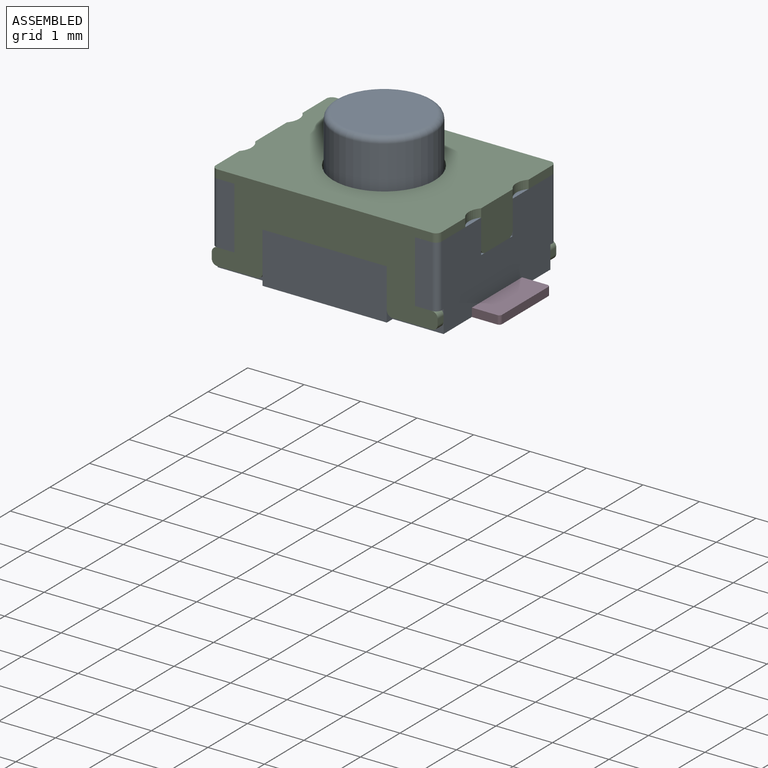
[diagram: assembled view]
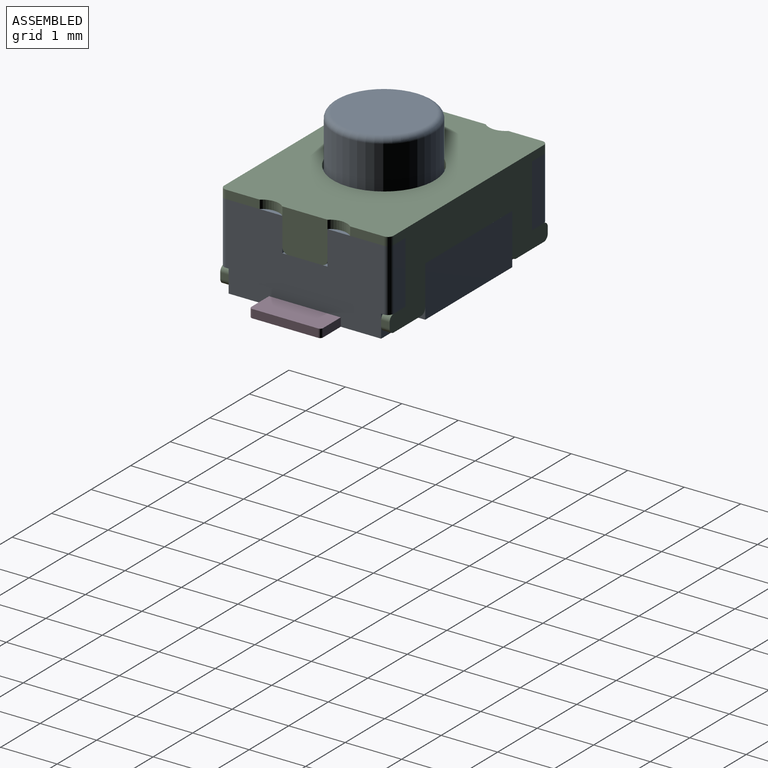
[diagram: assembled view, second angle]
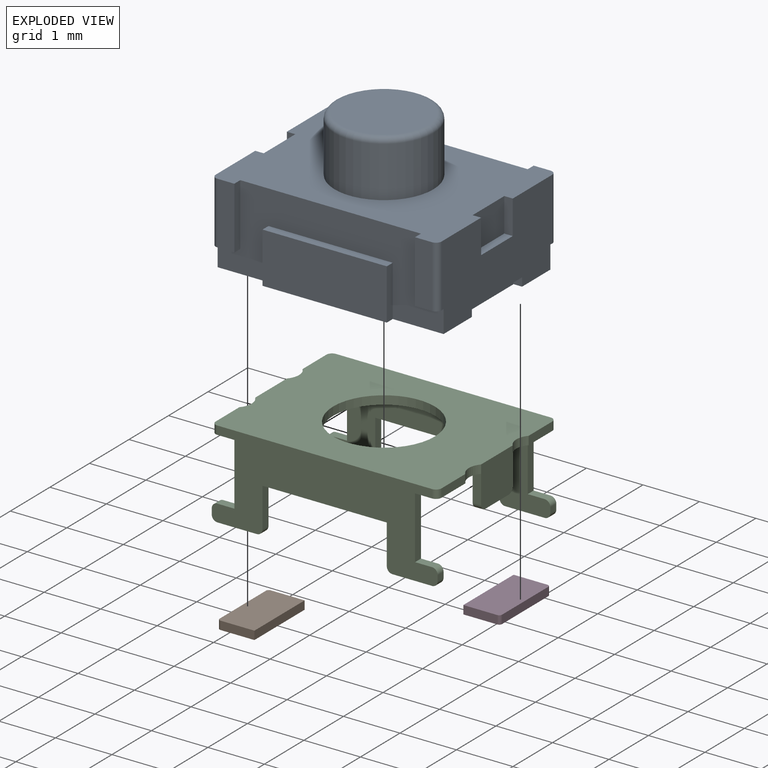
[diagram: exploded view]
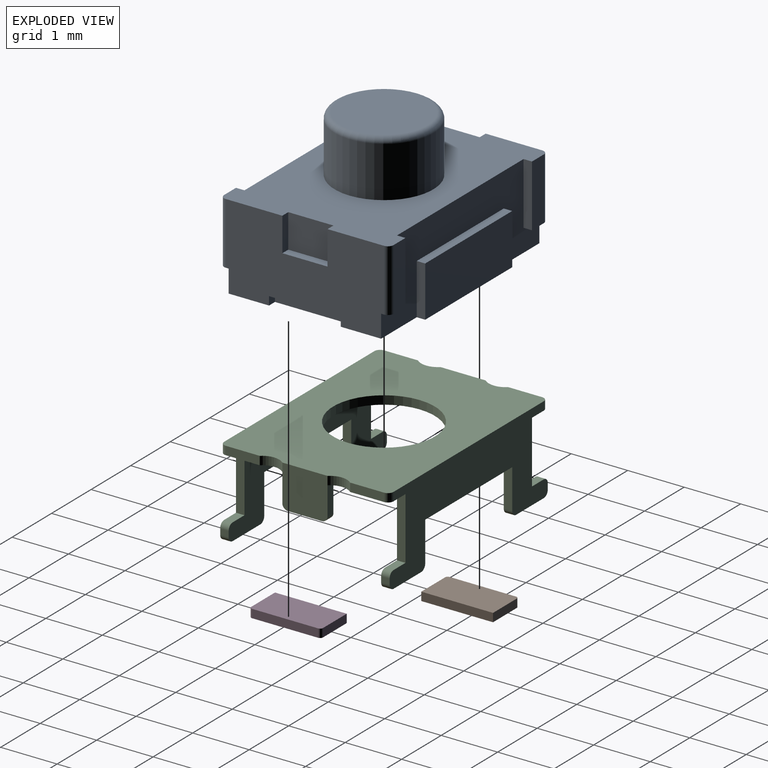
[diagram: exploded view, second angle]
ASSEMBLY  parts=4 mates=3
PART A: 49 faces, bbox 4x3x2.5 mm
  f0: plane 2.8x1.5mm, normal (1,0,0), area 3.5mm2, adj f2,f7,f10,f11,f12,f22,f23,f24
  f1: plane 2.8x1.5mm, normal (-1,0,0), area 3.5mm2, adj f2,f7,f14,f15,f16,f18,f19,f20
  f2: plane 4x3mm, normal (0,0,1), area 8.4mm2, adj f0,f1,f3,f4,f5,f9,f18,f19
  f3: plane 1.1x0.3mm, normal (0,-1,0), area 0.3mm2, adj f2,f38,f39,f48
  f4: plane 1.1x0.3mm, normal (0,-1,0), area 0.3mm2, adj f2,f36,f37,f45
  f5: plane 1.1x0.3mm, normal (0,1,0), area 0.3mm2, adj f2,f28,f29,f47
  f6: plane 2.2x0.9mm, normal (0,1,0), area 2mm2, adj f7,f26,f27,f32
  f7: plane 4x3mm, normal (0,0,-1), area 11.1mm2, adj f0,f1,f6,f8,f10,f12,f13,f15
  f8: plane 2.2x0.9mm, normal (0,-1,0), area 2mm2, adj f7,f34,f35,f40
  f9: plane 1.1x0.3mm, normal (0,1,0), area 0.3mm2, adj f2,f30,f31,f46
  f10: plane 0.15x0.15mm, normal (0,-1,0), area 0mm2, adj f0,f7,f11,f13
  f11: plane 1.27x0.15mm, normal (0,0,-1), area 0.2mm2, adj f0,f10,f12,f13
  f12: plane 0.15x0.15mm, normal (0,1,0), area 0mm2, adj f0,f7,f11,f13
  f13: plane 1.27x0.15mm, normal (1,0,0), area 0.2mm2, adj f7,f10,f11,f12
  f14: plane 1.27x0.15mm, normal (0,0,-1), area 0.2mm2, adj f1,f15,f16,f17
  f15: plane 0.15x0.15mm, normal (0,-1,0), area 0mm2, adj f1,f7,f14,f17
  f16: plane 0.15x0.15mm, normal (0,1,0), area 0mm2, adj f1,f7,f14,f17
  f17: plane 1.27x0.15mm, normal (-1,0,0), area 0.2mm2, adj f7,f14,f15,f16
  f18: plane 0.6x0.15mm, normal (0,1,0), area 0.1mm2, adj f1,f2,f20,f21
  f19: plane 0.6x0.15mm, normal (0,-1,0), area 0.1mm2, adj f1,f2,f20,f21
  f20: plane 0.8x0.15mm, normal (0,0,1), area 0.1mm2, adj f1,f18,f19,f21
  f21: plane 0.8x0.6mm, normal (-1,0,0), area 0.5mm2, adj f2,f18,f19,f20
  f22: plane 0.6x0.15mm, normal (0,-1,0), area 0.1mm2, adj f0,f2,f24,f25
  f23: plane 0.6x0.15mm, normal (0,1,0), area 0.1mm2, adj f0,f2,f24,f25
  f24: plane 0.8x0.15mm, normal (0,0,1), area 0.1mm2, adj f0,f22,f23,f25
  f25: plane 0.8x0.6mm, normal (1,0,0), area 0.5mm2, adj f2,f22,f23,f24
  f26: plane 2.2x0.15mm, normal (0,0,1), area 0.3mm2, adj f6,f27,f32,f33
  f27: plane 0.9x0.15mm, normal (-1,0,0), area 0.1mm2, adj f6,f7,f26,f33
  f28: plane 0.4x0.15mm, normal (0,0,-1), area 0.1mm2, adj f1,f5,f29,f33,f47
  f29: plane 1.1x0.15mm, normal (1,0,0), area 0.2mm2, adj f2,f5,f28,f33
  f30: plane 1.1x0.15mm, normal (-1,0,0), area 0.2mm2, adj f2,f9,f31,f33
  f31: plane 0.4x0.15mm, normal (0,0,-1), area 0.1mm2, adj f0,f9,f30,f33,f46
  f32: plane 0.9x0.15mm, normal (1,0,0), area 0.1mm2, adj f6,f7,f26,f33
  f33: plane 4x1.5mm, normal (0,1,0), area 3.1mm2, adj f0,f1,f2,f7,f26,f27,f28,f29
  f34: plane 2.2x0.15mm, normal (0,0,1), area 0.3mm2, adj f8,f35,f40,f41
  f35: plane 0.9x0.15mm, normal (1,0,0), area 0.1mm2, adj f7,f8,f34,f41
  f36: plane 0.4x0.15mm, normal (0,0,-1), area 0.1mm2, adj f0,f4,f37,f41,f45
  f37: plane 1.1x0.15mm, normal (-1,0,0), area 0.2mm2, adj f2,f4,f36,f41
  f38: plane 1.1x0.15mm, normal (1,0,0), area 0.2mm2, adj f2,f3,f39,f41
  f39: plane 0.4x0.15mm, normal (0,0,-1), area 0.1mm2, adj f1,f3,f38,f41,f48
  f40: plane 0.9x0.15mm, normal (-1,0,0), area 0.1mm2, adj f7,f8,f34,f41
  f41: plane 4x1.5mm, normal (0,-1,0), area 3.1mm2, adj f0,f1,f2,f7,f34,f35,f36,f37
  f42: cylinder r=0.88mm len=1.75mm, axis (0,0,-1), area 4.9mm2, adj f2,f44
  f43: plane 1.55x1.55mm, normal (0,0,1), area 1.9mm2, adj f44
  f44: torus R=0.78mm, axis (0,0,1), area 0.8mm2, adj f42,f43
  f45: cylinder r=0.1mm len=1.1mm, axis (0,0,1), area 0.2mm2, adj f0,f2,f4,f36
  f46: cylinder r=0.1mm len=1.1mm, axis (0,0,-1), area 0.2mm2, adj f0,f2,f9,f31
  f47: cylinder r=0.1mm len=1.1mm, axis (0,0,1), area 0.2mm2, adj f1,f2,f5,f28
  f48: cylinder r=0.1mm len=1.1mm, axis (0,0,-1), area 0.2mm2, adj f1,f2,f3,f39
PART B: 8 faces, bbox 0.7x1.3x0.2 mm
  f0: plane 0.6x0.15mm, normal (0,-1,0), area 0.1mm2, adj f1,f4,f5,f7
  f1: plane 1.27x0.15mm, normal (1,0,0), area 0.2mm2, adj f0,f2,f4,f5
  f2: plane 0.6x0.15mm, normal (0,1,0), area 0.1mm2, adj f1,f4,f5,f6
  f3: plane 1.17x0.15mm, normal (-1,0,0), area 0.2mm2, adj f4,f5,f6,f7
  f4: plane 1.27x0.65mm, normal (0,0,1), area 0.8mm2, adj f0,f1,f2,f3,f6,f7
  f5: plane 1.27x0.65mm, normal (0,0,-1), area 0.8mm2, adj f0,f1,f2,f3,f6,f7
  f6: cylinder r=0.05mm len=0.15mm, axis (0,0,1), area 0mm2, adj f2,f3,f4,f5
  f7: cylinder r=0.05mm len=0.15mm, axis (0,0,-1), area 0mm2, adj f0,f3,f4,f5
PART C: 67 faces, bbox 4x3x1.6 mm
  f0: plane 4x3mm, normal (0,0,1), area 8.2mm2, adj f2,f3,f5,f6,f7,f8,f10,f11
  f1: plane 0.8x0.75mm, normal (1,0,0), area 0.6mm2, adj f9,f14,f16,f17,f18,f19,f24,f25
  f2: plane 0.6x0.15mm, normal (1,0,0), area 0.1mm2, adj f0,f9,f24,f64
  f3: plane 0.6x0.15mm, normal (-1,0,0), area 0.1mm2, adj f0,f9,f23,f65
  f4: plane 0.8x0.75mm, normal (-1,0,0), area 0.6mm2, adj f9,f10,f11,f13,f20,f21,f22,f23
  f5: plane 4x1.55mm, normal (0,-1,0), area 3.5mm2, adj f0,f9,f29,f30,f32,f33,f34,f45
  f6: plane 0.6x0.15mm, normal (1,0,0), area 0.1mm2, adj f0,f9,f25,f63
  f7: plane 4x1.55mm, normal (0,1,0), area 3.5mm2, adj f0,f9,f26,f28,f35,f36,f37,f39
  f8: plane 0.6x0.15mm, normal (-1,0,0), area 0.1mm2, adj f0,f9,f22,f66
  f9: plane 4x3mm, normal (0,0,-1), area 9.4mm2, adj f1,f2,f3,f4,f5,f6,f7,f8
  f10: plane 0.5x0.15mm, normal (0,1,0), area 0.1mm2, adj f0,f4,f12,f21
  f11: plane 0.5x0.15mm, normal (0,-1,0), area 0.1mm2, adj f0,f4,f12,f20
  f12: plane 0.8x0.6mm, normal (1,0,0), area 0.5mm2, adj f0,f10,f11,f13,f20,f21
  f13: plane 0.6x0.15mm, normal (0,0,1), area 0.1mm2, adj f4,f12,f20,f21
  f14: plane 0.5x0.15mm, normal (0,1,0), area 0.1mm2, adj f0,f1,f15,f18
  f15: plane 0.8x0.6mm, normal (-1,0,0), area 0.5mm2, adj f0,f14,f16,f17,f18,f19
  f16: plane 0.5x0.15mm, normal (0,-1,0), area 0.1mm2, adj f0,f1,f15,f19
  f17: plane 0.6x0.15mm, normal (0,0,1), area 0.1mm2, adj f1,f15,f18,f19
  f18: cylinder r=0.1mm len=0.15mm, axis (1,0,0), area 0mm2, adj f1,f14,f15,f17
  f19: cylinder r=0.1mm len=0.15mm, axis (-1,0,0), area 0mm2, adj f1,f15,f16,f17
  f20: cylinder r=0.1mm len=0.15mm, axis (-1,0,0), area 0mm2, adj f4,f11,f12,f13
  f21: cylinder r=0.1mm len=0.15mm, axis (1,0,0), area 0mm2, adj f4,f10,f12,f13
  f22: cylinder r=0.3mm len=0.4mm, axis (0,0,1), area 0.1mm2, adj f0,f4,f8,f9
  f23: cylinder r=0.3mm len=0.4mm, axis (0,0,1), area 0.1mm2, adj f0,f3,f4,f9
  f24: cylinder r=0.3mm len=0.4mm, axis (0,0,1), area 0.1mm2, adj f0,f1,f2,f9
  f25: cylinder r=0.3mm len=0.4mm, axis (0,0,1), area 0.1mm2, adj f0,f1,f6,f9
  f26: plane 1.1x0.15mm, normal (-1,0,0), area 0.2mm2, adj f0,f7,f27,f39
  f27: plane 4x1.4mm, normal (0,-1,0), area 2.9mm2, adj f0,f26,f28,f35,f36,f37,f39,f40
  f28: plane 1.1x0.15mm, normal (1,0,0), area 0.2mm2, adj f0,f7,f27,f42
  f29: plane 1.1x0.15mm, normal (-1,0,0), area 0.2mm2, adj f0,f5,f31,f50
  f30: plane 1.1x0.15mm, normal (1,0,0), area 0.2mm2, adj f0,f5,f31,f47
  f31: plane 4x1.4mm, normal (0,1,0), area 2.9mm2, adj f0,f29,f30,f32,f33,f34,f45,f46
  f32: plane 0.7x0.15mm, normal (-1,0,0), area 0.1mm2, adj f5,f31,f33,f55
  f33: plane 2.2x0.15mm, normal (0,0,1), area 0.3mm2, adj f5,f31,f32,f34
  f34: plane 0.7x0.15mm, normal (1,0,0), area 0.1mm2, adj f5,f31,f33,f52
  f35: plane 0.7x0.15mm, normal (1,0,0), area 0.1mm2, adj f7,f27,f36,f62
  f36: plane 2.2x0.15mm, normal (0,0,1), area 0.3mm2, adj f7,f27,f35,f37
  f37: plane 0.7x0.15mm, normal (-1,0,0), area 0.1mm2, adj f7,f27,f36,f58
  f38: cylinder r=0.9mm len=1.8mm, axis (0,0,-1), area 0.8mm2, adj f0,f9
  f39: plane 0.3x0.15mm, normal (0,0,-1), area 0mm2, adj f7,f26,f27,f60
  f40: plane 0.15x0.1mm, normal (-1,0,0), area 0mm2, adj f7,f27,f60,f61
  f41: plane 0.7x0.15mm, normal (0,0,1), area 0.1mm2, adj f7,f27,f61,f62
  f42: plane 0.3x0.15mm, normal (0,0,-1), area 0mm2, adj f7,f27,f28,f57
  f43: plane 0.15x0.1mm, normal (1,0,0), area 0mm2, adj f7,f27,f57,f59
  f44: plane 0.7x0.15mm, normal (0,0,1), area 0.1mm2, adj f7,f27,f58,f59
  f45: plane 0.15x0.1mm, normal (1,0,0), area 0mm2, adj f5,f31,f54,f56
  f46: plane 0.7x0.15mm, normal (0,0,1), area 0.1mm2, adj f5,f31,f55,f56
  f47: plane 0.3x0.15mm, normal (0,0,-1), area 0mm2, adj f5,f30,f31,f54
  f48: plane 0.15x0.1mm, normal (-1,0,0), area 0mm2, adj f5,f31,f51,f53
  f49: plane 0.7x0.15mm, normal (0,0,1), area 0.1mm2, adj f5,f31,f52,f53
  f50: plane 0.3x0.15mm, normal (0,0,-1), area 0mm2, adj f5,f29,f31,f51
  f51: cylinder r=0.1mm len=0.15mm, axis (0,-1,0), area 0mm2, adj f5,f31,f48,f50
  f52: cylinder r=0.1mm len=0.15mm, axis (0,-1,0), area 0mm2, adj f5,f31,f34,f49
  f53: cylinder r=0.1mm len=0.15mm, axis (0,1,0), area 0mm2, adj f5,f31,f48,f49
  f54: cylinder r=0.1mm len=0.15mm, axis (0,1,0), area 0mm2, adj f5,f31,f45,f47
  f55: cylinder r=0.1mm len=0.15mm, axis (0,1,0), area 0mm2, adj f5,f31,f32,f46
  f56: cylinder r=0.1mm len=0.15mm, axis (0,-1,0), area 0mm2, adj f5,f31,f45,f46
  f57: cylinder r=0.1mm len=0.15mm, axis (0,1,0), area 0mm2, adj f7,f27,f42,f43
  f58: cylinder r=0.1mm len=0.15mm, axis (0,1,0), area 0mm2, adj f7,f27,f37,f44
  f59: cylinder r=0.1mm len=0.15mm, axis (0,-1,0), area 0mm2, adj f7,f27,f43,f44
  f60: cylinder r=0.1mm len=0.15mm, axis (0,-1,0), area 0mm2, adj f7,f27,f39,f40
  f61: cylinder r=0.1mm len=0.15mm, axis (0,1,0), area 0mm2, adj f7,f27,f40,f41
  f62: cylinder r=0.1mm len=0.15mm, axis (0,1,0), area 0mm2, adj f7,f27,f35,f41
  f63: cylinder r=0.1mm len=0.15mm, axis (0,0,1), area 0mm2, adj f0,f5,f6,f9
  f64: cylinder r=0.1mm len=0.15mm, axis (0,0,-1), area 0mm2, adj f0,f2,f7,f9
  f65: cylinder r=0.1mm len=0.15mm, axis (0,0,1), area 0mm2, adj f0,f3,f7,f9
  f66: cylinder r=0.1mm len=0.15mm, axis (0,0,-1), area 0mm2, adj f0,f5,f8,f9
PART D: same geometry as B
PLACE A t=(-0.59,-1.63,0.8)mm fixed
PLACE B t=(-4.44,-0.76,0.8)mm
PLACE C rot(axis=(1,0,0),180deg) t=(-0.59,1.37,2.45)mm
PLACE D rot(axis=(0,0,1),180deg) t=(-0.74,0.51,0.8)mm
MATE fastened C.f38 <-> A.f42  axis (0,0,-1) through (-2.59,-0.13,2.3)mm
MATE fastened D.f4 <-> A.f11  axis (0,0,1) through (-0.74,-0.13,0.95)mm
MATE fastened B.f4 <-> A.f14  axis (0,0,1) through (-4.44,-0.13,0.95)mm
